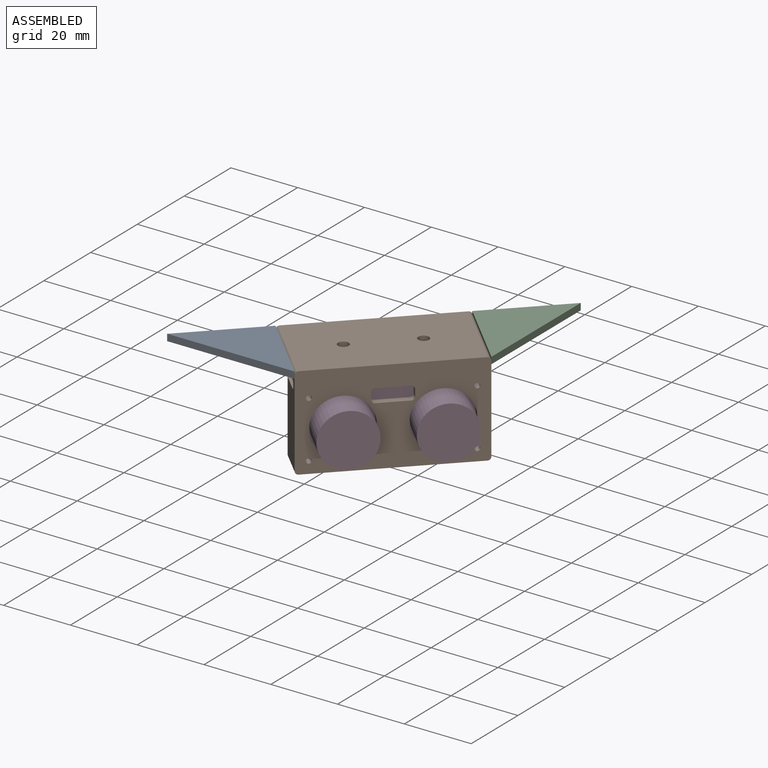
[diagram: assembled view]
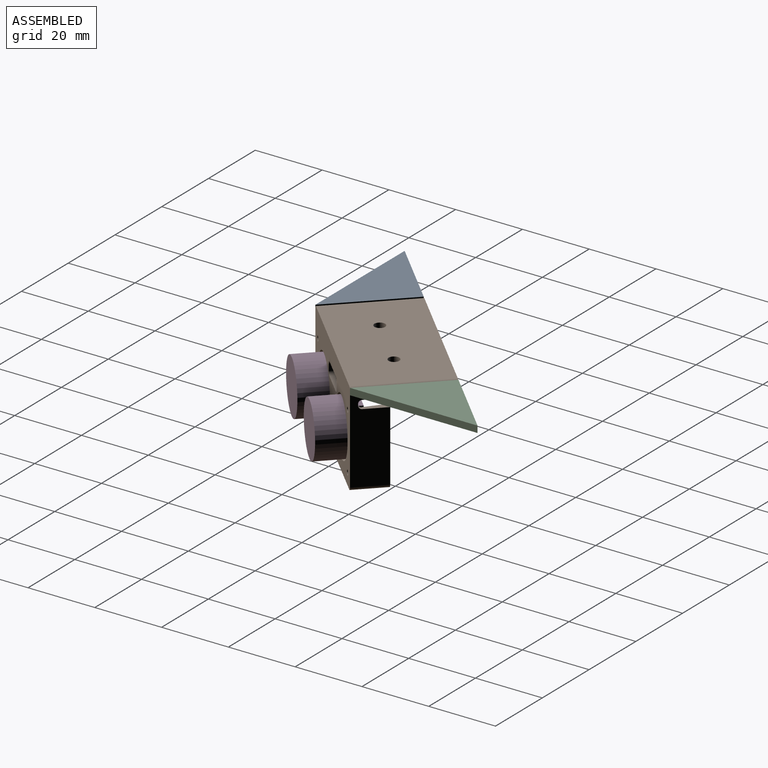
[diagram: assembled view, second angle]
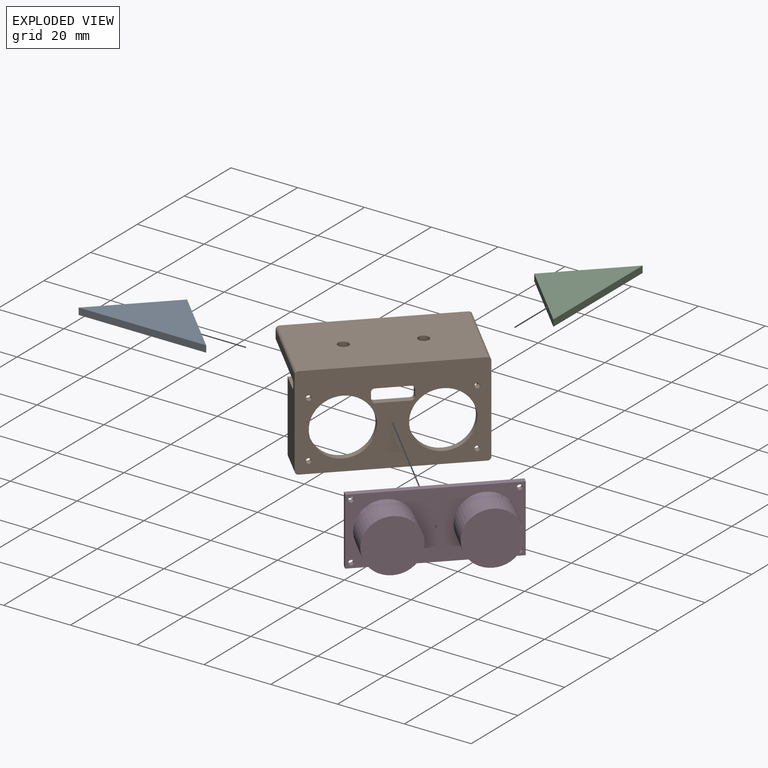
[diagram: exploded view]
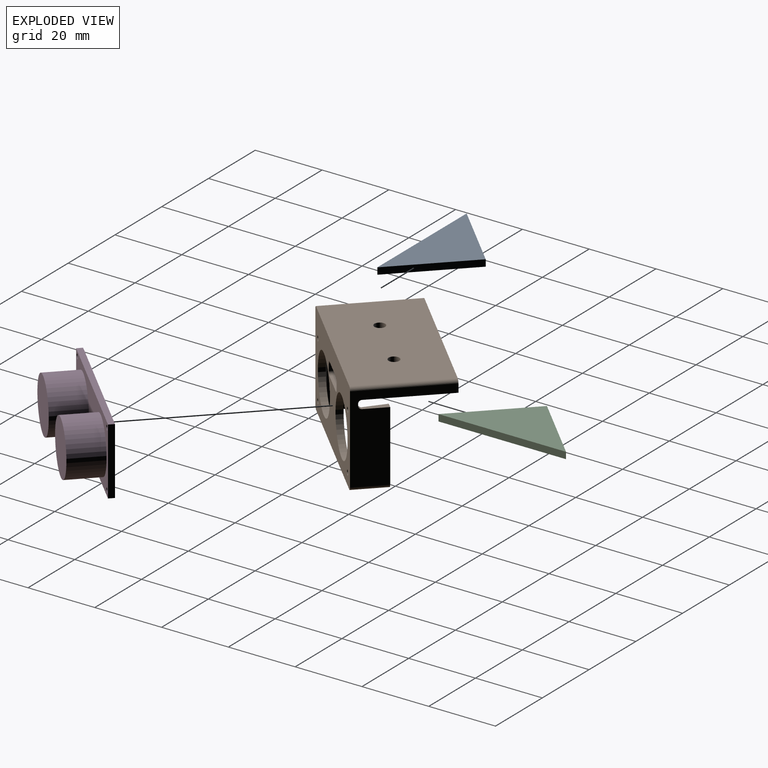
[diagram: exploded view, second angle]
ASSEMBLY  parts=4 mates=7
PART A: 5 faces, bbox 27x27x2 mm
  f0: plane 27x27mm, normal (0.71,0.71,0), area 76.4mm2, adj f1,f2,f3,f4
  f1: plane 27x2mm, normal (-1,0,0), area 54mm2, adj f0,f2,f3,f4
  f2: plane 27x2mm, normal (0,-1,0), area 54mm2, adj f0,f1,f3,f4
  f3: plane 27x27mm, normal (0,0,1), area 364.5mm2, adj f0,f1,f2
  f4: plane 27x27mm, normal (0,0,-1), area 364.5mm2, adj f0,f1,f2
PART B: 39 faces, bbox 49x27x28 mm
  f0: plane 22x1.98mm, normal (0,1,0), area 43.4mm2, adj f2,f9,f14,f22,f31
  f1: plane 27x26mm, normal (1,0,0), area 282.9mm2, adj f3,f4,f16,f17,f21,f23,f27,f28
  f2: plane 22x6.88mm, normal (0.99,-0.12,0), area 152.5mm2, adj f0,f14,f22,f24
  f3: plane 49x24mm, normal (0,0,-1), area 1159.9mm2, adj f1,f9,f17,f28,f37,f38
  f4: plane 49x23.5mm, normal (0,1,0), area 549.3mm2, adj f1,f5,f6,f7,f9,f10,f11,f12
  f5: plane 2x2mm, normal (-1,0,0), area 4mm2, adj f4,f16,f33,f36
  f6: plane 9x2mm, normal (0,0,1), area 18mm2, adj f4,f16,f33,f34
  f7: plane 2x2mm, normal (1,0,0), area 4mm2, adj f4,f16,f34,f35
  f8: plane 47x27mm, normal (0,0,1), area 1252.9mm2, adj f16,f17,f29,f30,f37,f38
  f9: plane 27x26mm, normal (-1,0,0), area 282.9mm2, adj f0,f3,f4,f16,f17,f22,f25,f28
  f10: cylinder r=0.75mm len=2mm, axis (0,1,0), area 9.4mm2, adj f4,f16
  f11: cylinder r=0.75mm len=2mm, axis (0,1,0), area 9.4mm2, adj f4,f16
  f12: cylinder r=0.75mm len=2mm, axis (0,1,0), area 9.4mm2, adj f4,f16
  f13: plane 9x2mm, normal (0,0,-1), area 18mm2, adj f4,f16,f35,f36
  f14: plane 47x10mm, normal (0,0,-1), area 102.4mm2, adj f0,f2,f4,f16,f20,f21,f24,f26
  f15: cylinder r=0.75mm len=2mm, axis (0,1,0), area 9.4mm2, adj f4,f16
  f16: plane 49x28mm, normal (0,-1,0), area 867mm2, adj f1,f5,f6,f7,f8,f9,f10,f11
  f17: plane 49x3.5mm, normal (0,1,0), area 171.1mm2, adj f1,f3,f8,f9,f29,f30
  f18: cylinder r=8.5mm len=17mm, axis (0,1,0), area 106.8mm2, adj f4,f16
  f19: cylinder r=8.5mm len=17mm, axis (0,1,0), area 106.8mm2, adj f4,f16
  f20: plane 22x6.88mm, normal (-0.99,-0.12,0), area 152.5mm2, adj f14,f21,f23,f26
  f21: plane 22x1.98mm, normal (0,1,0), area 43.4mm2, adj f1,f14,f20,f23,f32
  f22: plane 7x1.98mm, normal (0,0,1), area 10.9mm2, adj f0,f2,f9,f24,f25
  f23: plane 7x1.98mm, normal (0,0,1), area 10.9mm2, adj f1,f20,f21,f26,f27
  f24: cylinder r=1mm len=23mm, axis (0,0,1), area 37.8mm2, adj f2,f4,f14,f22,f25
  f25: cylinder r=1mm len=2.13mm, axis (1,0,0), area 2.3mm2, adj f4,f9,f22,f24
  f26: cylinder r=1mm len=23mm, axis (0,0,1), area 37.8mm2, adj f4,f14,f20,f23,f27
  f27: cylinder r=1mm len=2.13mm, axis (1,0,0), area 2.3mm2, adj f1,f4,f23,f26
  f28: cylinder r=1mm len=49mm, axis (1,0,0), area 77mm2, adj f1,f3,f4,f9
  f29: cylinder r=1mm len=27mm, axis (0,-1,0), area 42.4mm2, adj f1,f8,f16,f17
  f30: cylinder r=1mm len=27mm, axis (0,1,0), area 42.4mm2, adj f8,f9,f16,f17
  f31: cylinder r=1mm len=10mm, axis (0,-1,0), area 15.7mm2, adj f0,f9,f14,f16
  f32: cylinder r=1mm len=10mm, axis (0,1,0), area 15.7mm2, adj f1,f14,f16,f21
  f33: cylinder r=1mm len=2mm, axis (0,1,0), area 3.1mm2, adj f4,f5,f6,f16
  f34: cylinder r=1mm len=2mm, axis (0,-1,0), area 3.1mm2, adj f4,f6,f7,f16
  f35: cylinder r=1mm len=2mm, axis (0,1,0), area 3.1mm2, adj f4,f7,f13,f16
  f36: cylinder r=1mm len=2mm, axis (0,-1,0), area 3.1mm2, adj f4,f5,f13,f16
  f37: cylinder r=1.6mm len=3.5mm, axis (0,0,1), area 35.2mm2, adj f3,f8
  f38: cylinder r=1.6mm len=3.5mm, axis (0,0,1), area 35.2mm2, adj f3,f8
PART C: same geometry as A
PART D: 14 faces, bbox 45x11.8x20 mm
  f0: plane 45x1.75mm, normal (0,0,-1), area 78.8mm2, adj f1,f7,f8,f9
  f1: plane 20x1.75mm, normal (1,0,0), area 35mm2, adj f0,f2,f8,f9
  f2: plane 45x1.75mm, normal (0,0,1), area 78.8mm2, adj f1,f7,f8,f9
  f3: cylinder r=0.75mm len=1.75mm, axis (0,1,0), area 8.2mm2, adj f8,f9
  f4: cylinder r=0.75mm len=1.75mm, axis (0,1,0), area 8.2mm2, adj f8,f9
  f5: cylinder r=0.75mm len=1.75mm, axis (0,1,0), area 8.2mm2, adj f8,f9
  f6: cylinder r=0.75mm len=1.75mm, axis (0,1,0), area 8.2mm2, adj f8,f9
  f7: plane 20x1.75mm, normal (-1,0,0), area 35mm2, adj f0,f2,f8,f9
  f8: plane 45x20mm, normal (0,-1,0), area 490.8mm2, adj f0,f1,f2,f3,f4,f5,f6,f7
  f9: plane 45x20mm, normal (0,1,0), area 892.9mm2, adj f0,f1,f2,f3,f4,f5,f6,f7
  f10: cylinder r=8mm len=16mm, axis (0,1,0), area 502.7mm2, adj f8,f11
  f11: plane 16x16mm, normal (0,-1,0), area 201.1mm2, adj f10
  f12: cylinder r=8mm len=16mm, axis (0,1,0), area 502.7mm2, adj f8,f13
  f13: plane 16x16mm, normal (0,-1,0), area 201.1mm2, adj f12
PLACE A rot(axis=(0,0,-1),135deg) t=(-1.99,13.79,17.8)mm
PLACE B rot(axis=(0,0,1),45deg) t=(11.8,0,3.8)mm
PLACE C rot(axis=(0,0,-1),45deg) t=(-1.99,53.74,17.8)mm
PLACE D rot(axis=(0,0,1),45deg) t=(11.8,0,3.8)mm
MATE planar C.f3 <-> B.f8  axis (0,0,1) through (25.41,33.76,19.8)mm
MATE planar B.f17 <-> C.f1  axis (-0.71,0.71,0) through (-4.64,16.44,18.05)mm
MATE planar C.f2 <-> B.f1  axis (-0.71,-0.71,0) through (22.23,24.21,18.8)mm
MATE fastened D.f10 <-> B.f18  axis (0.71,-0.71,0) through (4.2,-10.08,3.8)mm
MATE planar A.f2 <-> B.f17  axis (-0.71,0.71,0) through (-31.51,-10.43,18.8)mm
MATE planar A.f3 <-> B.f8  axis (0,0,1) through (-21.97,-13.62,19.8)mm
MATE planar B.f9 <-> A.f1  axis (-0.71,-0.71,0) through (-7.79,-15.06,6.93)mm
